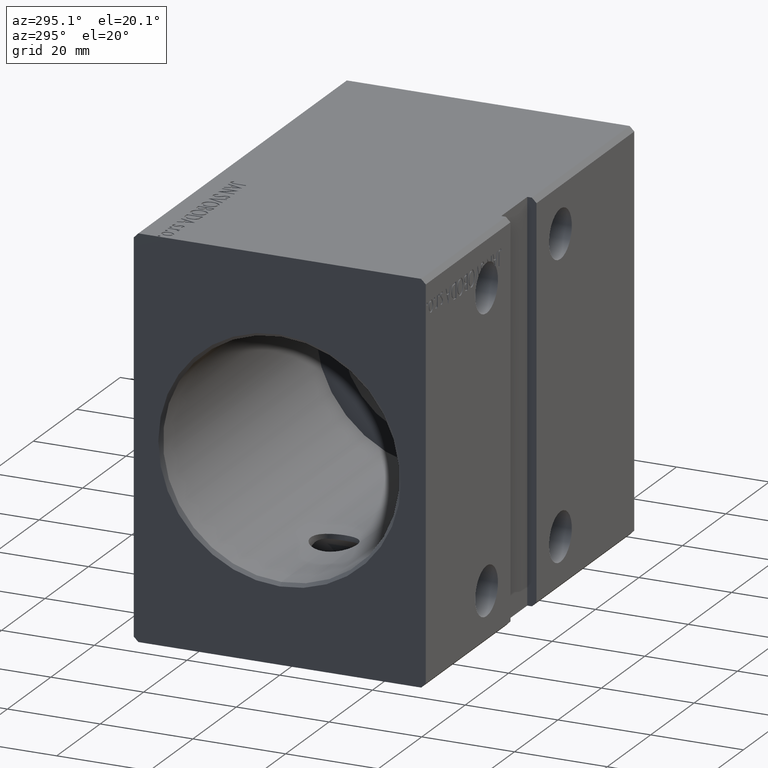
[diagram: clean part render]
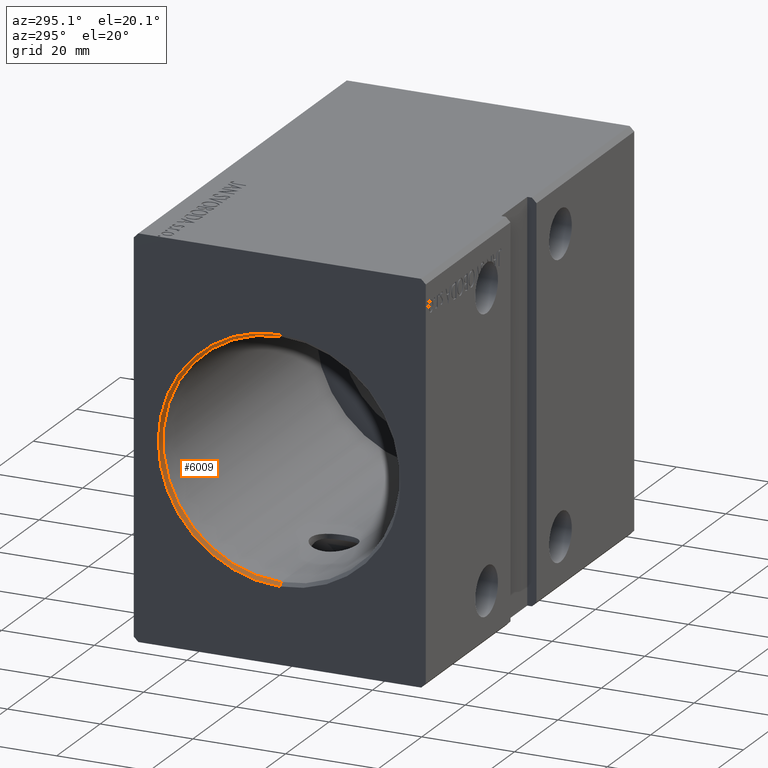
[diagram: same view with one face highlighted and labeled with its STEP entity id]
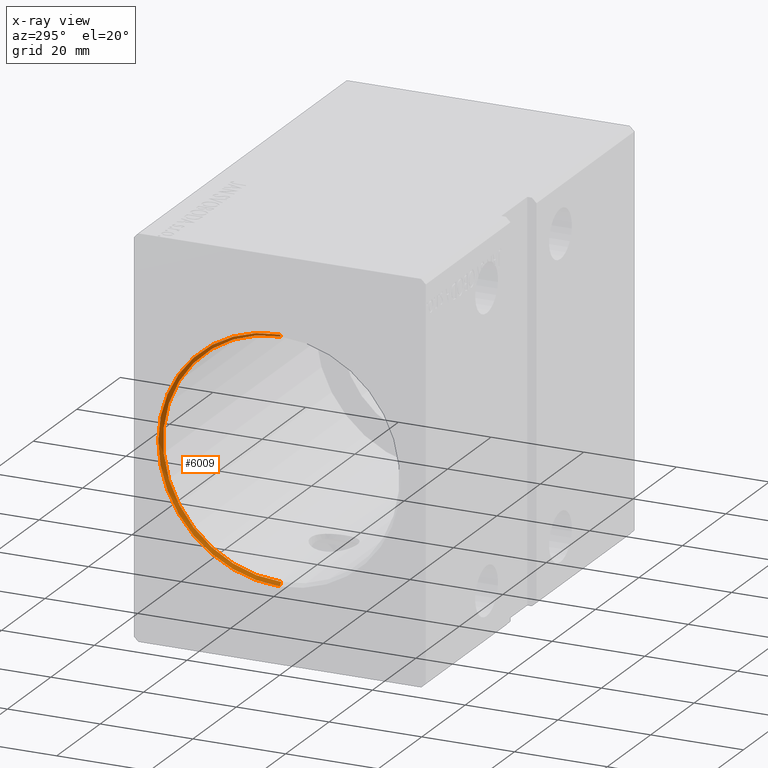
[diagram: x-ray of the same camera — body ghosted, the highlighted face saturated]
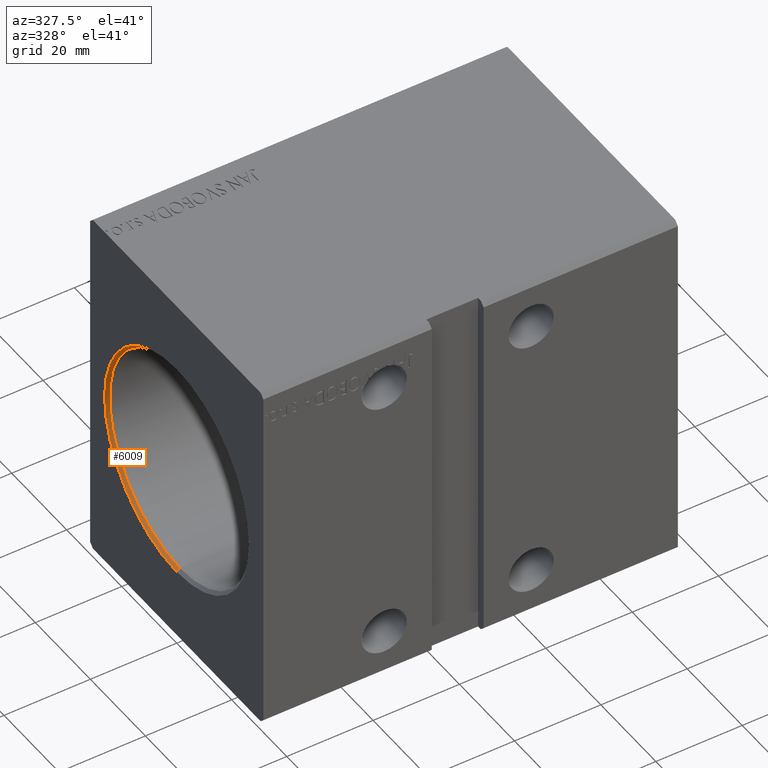
[diagram: same view with one face highlighted and labeled with its STEP entity id]
A machine part, auxiliary view. The second image highlights one B-rep face of the part: STEP entity #6009.
The next image is the same camera in x-ray: the body ghosted, the highlighted face saturated — about 0% of this face is hidden behind the body in this view.
A second angle (auxiliary view) of the same face is appended — the face is thin or edge-on in the first view.
In plain terms, the highlighted conical surface has half-angle 45 deg.
Its self-contained STEP definition (entity closure, byte-faithful):
#591 = VERTEX_POINT ( 'NONE', #9870 ) ;
#1458 = VERTEX_POINT ( 'NONE', #8004 ) ;
#1513 = EDGE_CURVE ( 'NONE', #37822, #591, #9237, .T. ) ;
#2059 = LINE ( 'NONE', #39857, #20163 ) ;
#2134 = CIRCLE ( 'NONE', #25250, 25.50000000000000000 ) ;
#4782 = AXIS2_PLACEMENT_3D ( 'NONE', #20533, #29626, #35843 ) ;
#6009 = ADVANCED_FACE ( 'NONE', ( #15669 ), #23676, .F. ) ;
#6141 = DIRECTION ( 'NONE',  ( -0.7071067811865422437, 0.000000000000000000, 0.7071067811865527908 ) ) ;
#7109 = ORIENTED_EDGE ( 'NONE', *, *, #1513, .T. ) ;
#7511 = DIRECTION ( 'NONE',  ( 0.000000000000000000, 0.000000000000000000, -1.000000000000000000 ) ) ;
#8004 = CARTESIAN_POINT ( 'NONE',  ( 0.000000000000000000, 3.208574613766067271E-15, -26.20000000000001350 ) ) ;
#9237 = LINE ( 'NONE', #37331, #19635 ) ;
#9870 = CARTESIAN_POINT ( 'NONE',  ( 0.000000000000000000, 0.000000000000000000, 26.20000000000001350 ) ) ;
#11813 = ORIENTED_EDGE ( 'NONE', *, *, #39657, .F. ) ;
#14121 = ORIENTED_EDGE ( 'NONE', *, *, #22807, .F. ) ;
#15669 = FACE_OUTER_BOUND ( 'NONE', #33672, .T. ) ;
#19496 = DIRECTION ( 'NONE',  ( -1.000000000000000000, 0.000000000000000000, 0.000000000000000000 ) ) ;
#19635 = VECTOR ( 'NONE', #6141, 1000.000000000000000 ) ;
#20163 = VECTOR ( 'NONE', #28504, 1000.000000000000000 ) ;
#20533 = CARTESIAN_POINT ( 'NONE',  ( 0.000000000000000000, 0.000000000000000000, 0.000000000000000000 ) ) ;
#20679 = VERTEX_POINT ( 'NONE', #35450 ) ;
#22608 = CIRCLE ( 'NONE', #4782, 26.20000000000001350 ) ;
#22807 = EDGE_CURVE ( 'NONE', #37822, #20679, #2134, .T. ) ;
#23676 = CONICAL_SURFACE ( 'NONE', #28314, 25.50000000000000000, 0.7853981633974557175 ) ;
#25174 = DIRECTION ( 'NONE',  ( 0.000000000000000000, 0.000000000000000000, 1.000000000000000000 ) ) ;
#25250 = AXIS2_PLACEMENT_3D ( 'NONE', #29609, #19496, #7511 ) ;
#28314 = AXIS2_PLACEMENT_3D ( 'NONE', #28876, #37961, #25174 ) ;
#28504 = DIRECTION ( 'NONE',  ( -0.7071067811865422437, 8.659560562354996953E-17, -0.7071067811865527908 ) ) ;
#28876 = CARTESIAN_POINT ( 'NONE',  ( 0.7000000000000061728, 0.000000000000000000, 0.000000000000000000 ) ) ;
#29609 = CARTESIAN_POINT ( 'NONE',  ( 0.7000000000000061728, 0.000000000000000000, 0.000000000000000000 ) ) ;
#29626 = DIRECTION ( 'NONE',  ( 1.000000000000000000, 0.000000000000000000, 0.000000000000000000 ) ) ;
#29845 = EDGE_CURVE ( 'NONE', #20679, #1458, #2059, .T. ) ;
#32586 = ORIENTED_EDGE ( 'NONE', *, *, #29845, .F. ) ;
#33672 = EDGE_LOOP ( 'NONE', ( #32586, #14121, #7109, #11813 ) ) ;
#35450 = CARTESIAN_POINT ( 'NONE',  ( 0.7000000000000061728, 3.122849337825750222E-15, -25.50000000000000000 ) ) ;
#35843 = DIRECTION ( 'NONE',  ( 0.000000000000000000, 0.000000000000000000, -1.000000000000000000 ) ) ;
#37331 = CARTESIAN_POINT ( 'NONE',  ( 0.7000000000000061728, 0.000000000000000000, 25.50000000000000000 ) ) ;
#37822 = VERTEX_POINT ( 'NONE', #39677 ) ;
#37961 = DIRECTION ( 'NONE',  ( -1.000000000000000000, 0.000000000000000000, 0.000000000000000000 ) ) ;
#39657 = EDGE_CURVE ( 'NONE', #1458, #591, #22608, .T. ) ;
#39677 = CARTESIAN_POINT ( 'NONE',  ( 0.7000000000000061728, 0.000000000000000000, 25.50000000000000000 ) ) ;
#39857 = CARTESIAN_POINT ( 'NONE',  ( 0.7000000000000061728, 3.122849337825750222E-15, -25.50000000000000000 ) ) ;